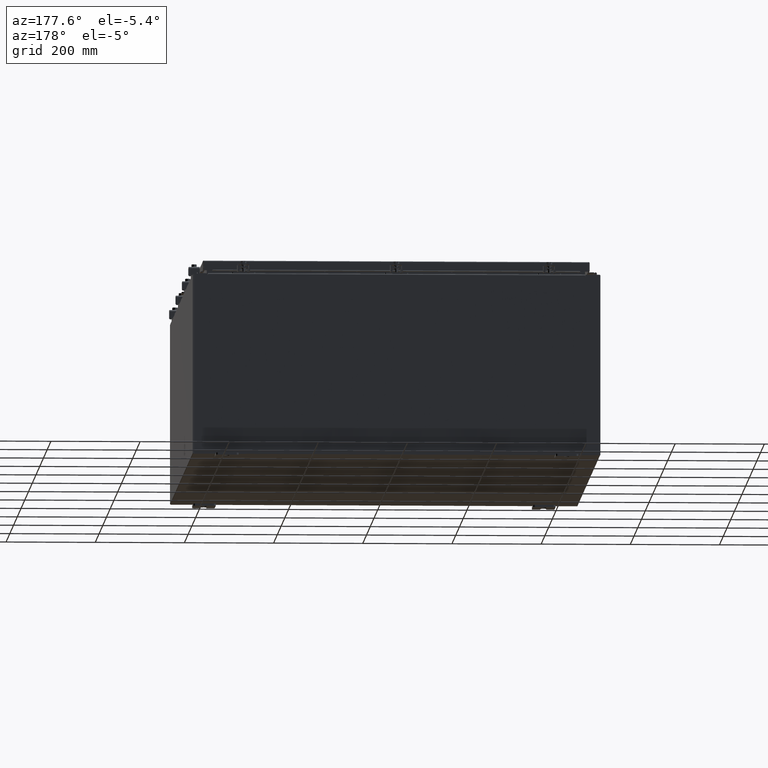
[diagram: clean part render]
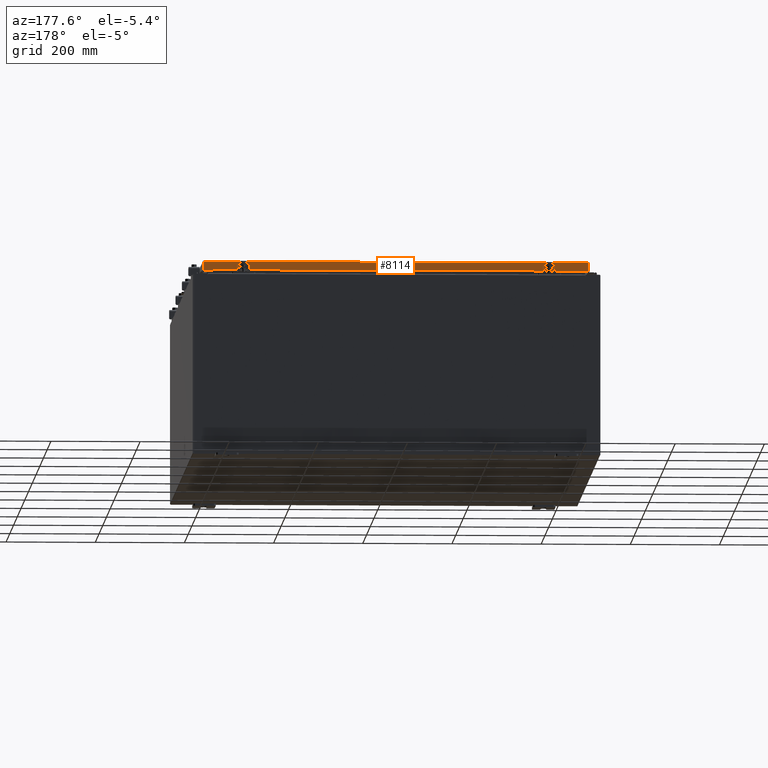
[diagram: same view with one face highlighted and labeled with its STEP entity id]
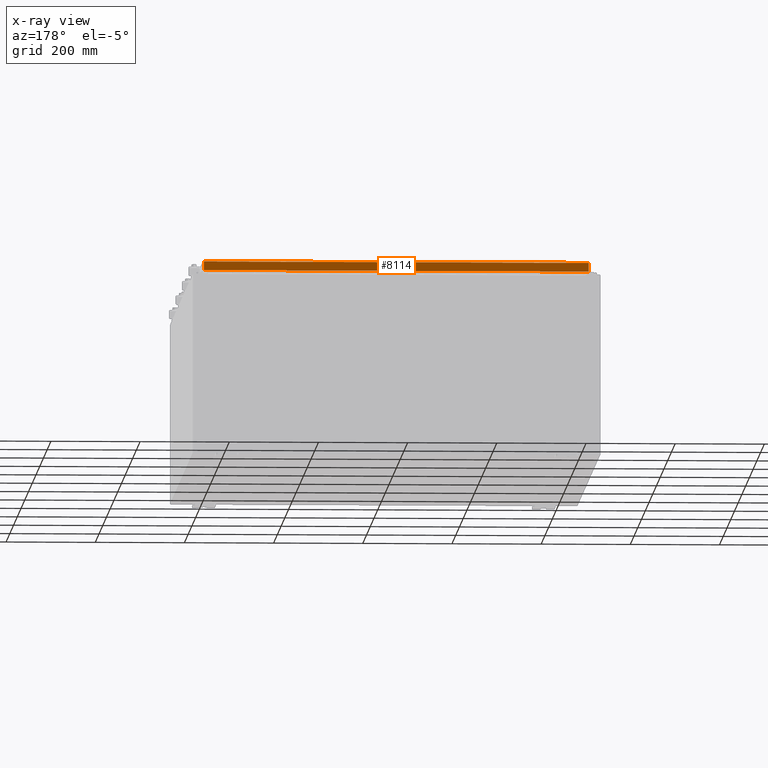
[diagram: x-ray of the same camera — body ghosted, the highlighted face saturated]
A machine part, auxiliary view. The second image highlights one B-rep face of the part: STEP entity #8114.
The next image is the same camera in x-ray: the body ghosted, the highlighted face saturated — about 0% of this face is hidden behind the body in this view.
In plain terms, the highlighted planar face has unit normal (0, -1, -0).
Its self-contained STEP definition (entity closure, byte-faithful):
#723 = EDGE_CURVE ( 'NONE', #30193, #7995, #13000, .T. ) ;
#2034 = ORIENTED_EDGE ( 'NONE', *, *, #34644, .F. ) ;
#2207 = CARTESIAN_POINT ( 'NONE',  ( -16.98915786437626400, 23.09400000000000800, -0.8500000000000038600 ) ) ;
#2729 = CARTESIAN_POINT ( 'NONE',  ( 16.98915786437627100, 23.09400000000000800, -0.8499999999999996400 ) ) ;
#3513 = VERTEX_POINT ( 'NONE', #6743 ) ;
#4321 = CARTESIAN_POINT ( 'NONE',  ( -17.07799999999999600, 23.09400000000000800, -0.8500000000000038600 ) ) ;
#5039 = LINE ( 'NONE', #48694, #46778 ) ;
#6743 = CARTESIAN_POINT ( 'NONE',  ( -16.98915786437626400, 23.09400000000000500, -0.08769999999999549000 ) ) ;
#7224 = CARTESIAN_POINT ( 'NONE',  ( 16.98915786437627100, 23.09400000000000500, -0.08769999999999547600 ) ) ;
#7995 = VERTEX_POINT ( 'NONE', #34437 ) ;
#8114 = ADVANCED_FACE ( 'NONE', ( #51564 ), #30096, .F. ) ;
#9355 = DIRECTION ( 'NONE',  ( -0.0000000000000000000, 5.637761885544689500E-015, -1.000000000000000000 ) ) ;
#10937 = AXIS2_PLACEMENT_3D ( 'NONE', #33888, #13593, #17078 ) ;
#11080 = VERTEX_POINT ( 'NONE', #2729 ) ;
#12254 = DIRECTION ( 'NONE',  ( 1.000000000000000000, 8.758115402030108600E-047, 1.239713195391617600E-016 ) ) ;
#13000 = LINE ( 'NONE', #33053, #24171 ) ;
#13408 = VECTOR ( 'NONE', #31613, 39.37007874015748100 ) ;
#13593 = DIRECTION ( 'NONE',  ( 6.989207801985677300E-031, -1.000000000000000000, -5.637761885544689500E-015 ) ) ;
#17078 = DIRECTION ( 'NONE',  ( 0.0000000000000000000, 5.637761885544689500E-015, -1.000000000000000000 ) ) ;
#17131 = LINE ( 'NONE', #30486, #49122 ) ;
#17680 = CARTESIAN_POINT ( 'NONE',  ( -16.98915786437626400, 23.09400000000000500, -0.07469999999999958600 ) ) ;
#17811 = DIRECTION ( 'NONE',  ( 0.0000000000000000000, 5.637761885544689500E-015, -1.000000000000000000 ) ) ;
#18692 = LINE ( 'NONE', #4321, #28556 ) ;
#21617 = EDGE_CURVE ( 'NONE', #38137, #3513, #5039, .T. ) ;
#22684 = VECTOR ( 'NONE', #9355, 39.37007874015748100 ) ;
#24171 = VECTOR ( 'NONE', #12254, 39.37007874015748100 ) ;
#24427 = EDGE_CURVE ( 'NONE', #7995, #38163, #24577, .T. ) ;
#24577 = LINE ( 'NONE', #27448, #13408 ) ;
#25373 = ORIENTED_EDGE ( 'NONE', *, *, #24427, .F. ) ;
#27448 = CARTESIAN_POINT ( 'NONE',  ( -16.23915786437625600, 23.09400000000000100, -0.8500000000000081900 ) ) ;
#28556 = VECTOR ( 'NONE', #50227, 39.37007874015748100 ) ;
#30096 = PLANE ( 'NONE',  #10937 ) ;
#30193 = VERTEX_POINT ( 'NONE', #2207 ) ;
#30486 = CARTESIAN_POINT ( 'NONE',  ( 16.98915786437627100, 23.09400000000000500, 1.304592866407806800E-013 ) ) ;
#31613 = DIRECTION ( 'NONE',  ( 1.000000000000000000, -0.0000000000000000000, -0.0000000000000000000 ) ) ;
#33053 = CARTESIAN_POINT ( 'NONE',  ( -17.07799999999999600, 23.09400000000000800, -0.8500000000000038600 ) ) ;
#33888 = CARTESIAN_POINT ( 'NONE',  ( -1.614087649790572800E-029, 23.09400000000000500, 1.304592866407806800E-013 ) ) ;
#34437 = CARTESIAN_POINT ( 'NONE',  ( -16.23915786437625600, 23.09400000000000100, -0.8500000000000081900 ) ) ;
#34464 = ORIENTED_EDGE ( 'NONE', *, *, #39653, .F. ) ;
#34644 = EDGE_CURVE ( 'NONE', #3513, #30193, #47464, .T. ) ;
#35297 = ORIENTED_EDGE ( 'NONE', *, *, #21617, .F. ) ;
#35350 = EDGE_CURVE ( 'NONE', #38137, #11080, #17131, .T. ) ;
#36383 = CARTESIAN_POINT ( 'NONE',  ( 16.23915786437626400, 23.09400000000000100, -0.8500000000000081900 ) ) ;
#38137 = VERTEX_POINT ( 'NONE', #7224 ) ;
#38163 = VERTEX_POINT ( 'NONE', #36383 ) ;
#38494 = ORIENTED_EDGE ( 'NONE', *, *, #35350, .T. ) ;
#39117 = EDGE_LOOP ( 'NONE', ( #35297, #38494, #34464, #25373, #47780, #2034 ) ) ;
#39653 = EDGE_CURVE ( 'NONE', #38163, #11080, #18692, .T. ) ;
#40342 = DIRECTION ( 'NONE',  ( -1.000000000000000000, -6.989207801985679100E-031, -3.922586267643529200E-045 ) ) ;
#46778 = VECTOR ( 'NONE', #40342, 39.37007874015748100 ) ;
#47464 = LINE ( 'NONE', #17680, #22684 ) ;
#47780 = ORIENTED_EDGE ( 'NONE', *, *, #723, .F. ) ;
#48694 = CARTESIAN_POINT ( 'NONE',  ( -17.07799999999999600, 23.09400000000000500, -0.08769999999999547600 ) ) ;
#49122 = VECTOR ( 'NONE', #17811, 39.37007874015748100 ) ;
#50227 = DIRECTION ( 'NONE',  ( 1.000000000000000000, 8.758115402030108600E-047, 1.239713195391617600E-016 ) ) ;
#51564 = FACE_OUTER_BOUND ( 'NONE', #39117, .T. ) ;